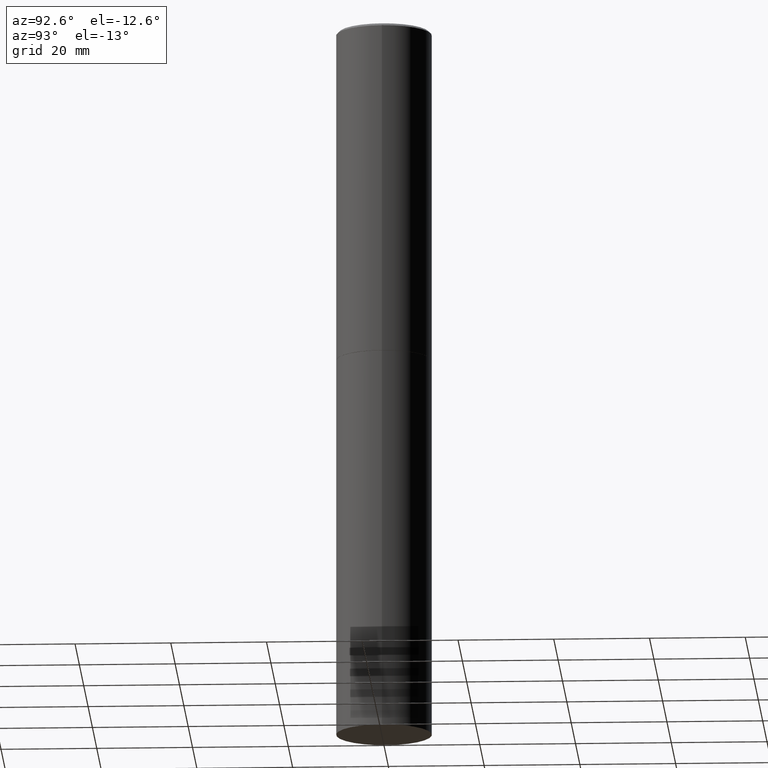
[diagram: clean part render]
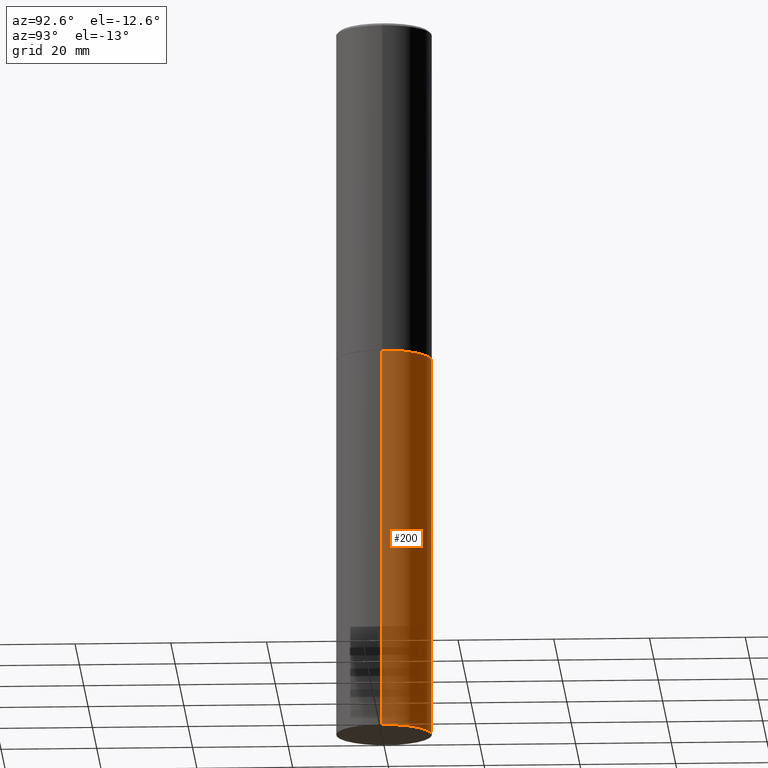
[diagram: same view with one face highlighted and labeled with its STEP entity id]
A machine part, auxiliary view. The second image highlights one B-rep face of the part: STEP entity #200.
In plain terms, the highlighted cylindrical surface (partial cylindrical patch) has radius 10 mm, axis along (-0, 0, 1).
Its self-contained STEP definition (entity closure, byte-faithful):
#8 = ORIENTED_EDGE ( 'NONE', *, *, #154, .F. ) ;
#27 = CARTESIAN_POINT ( 'NONE',  ( 0.3937000000000000499, -1.237136582792290603E-14, -2.755899999999999572 ) ) ;
#64 = CARTESIAN_POINT ( 'NONE',  ( 6.739467482965617111E-29, -9.622173421717822812E-15, -2.755899999999999572 ) ) ;
#66 = EDGE_CURVE ( 'NONE', #168, #98, #285, .T. ) ;
#83 = CARTESIAN_POINT ( 'NONE',  ( -0.3937000000000000499, -1.232315148344049418E-14, -2.755899999999999572 ) ) ;
#84 = AXIS2_PLACEMENT_3D ( 'NONE', #113, #108, #222 ) ;
#98 = VERTEX_POINT ( 'NONE', #83 ) ;
#106 = VERTEX_POINT ( 'NONE', #27 ) ;
#108 = DIRECTION ( 'NONE',  ( -2.445468806185136597E-29, 3.491481338843145583E-15, 1.000000000000000000 ) ) ;
#113 = CARTESIAN_POINT ( 'NONE',  ( 1.444171603492632270E-28, -2.061894304653819197E-14, -5.905499999999999972 ) ) ;
#120 = CARTESIAN_POINT ( 'NONE',  ( 0.3937000000000000499, -2.749192406205083217E-15, 1.919750796630860172E-29 ) ) ;
#133 = DIRECTION ( 'NONE',  ( -2.445468806185136877E-29, 3.491481338843145188E-15, 1.000000000000000000 ) ) ;
#145 = CARTESIAN_POINT ( 'NONE',  ( -0.3937000000000000499, -1.232315148344049418E-14, -5.905499999999999972 ) ) ;
#147 = CARTESIAN_POINT ( 'NONE',  ( 0.000000000000000000, 0.000000000000000000, 0.000000000000000000 ) ) ;
#148 = ORIENTED_EDGE ( 'NONE', *, *, #206, .F. ) ;
#154 = EDGE_CURVE ( 'NONE', #359, #106, #328, .T. ) ;
#168 = VERTEX_POINT ( 'NONE', #145 ) ;
#172 = VECTOR ( 'NONE', #334, 39.37007874015748143 ) ;
#178 = DIRECTION ( 'NONE',  ( 1.000000000000000000, -6.982962677686267499E-15, 0.000000000000000000 ) ) ;
#193 = AXIS2_PLACEMENT_3D ( 'NONE', #64, #331, #178 ) ;
#200 = ADVANCED_FACE ( 'NONE', ( #301 ), #251, .T. ) ;
#206 = EDGE_CURVE ( 'NONE', #106, #98, #244, .T. ) ;
#215 = VECTOR ( 'NONE', #133, 39.37007874015748143 ) ;
#218 = EDGE_LOOP ( 'NONE', ( #221, #237, #148, #8 ) ) ;
#221 = ORIENTED_EDGE ( 'NONE', *, *, #357, .T. ) ;
#222 = DIRECTION ( 'NONE',  ( 1.000000000000000000, -6.982962677686267499E-15, 0.000000000000000000 ) ) ;
#235 = AXIS2_PLACEMENT_3D ( 'NONE', #147, #304, #253 ) ;
#237 = ORIENTED_EDGE ( 'NONE', *, *, #66, .T. ) ;
#244 = CIRCLE ( 'NONE', #193, 0.3937000000000000499 ) ;
#251 = CYLINDRICAL_SURFACE ( 'NONE', #235, 0.3937000000000000499 ) ;
#253 = DIRECTION ( 'NONE',  ( 1.000000000000000000, -6.982962677686265922E-15, 4.876176775795935793E-29 ) ) ;
#264 = CARTESIAN_POINT ( 'NONE',  ( -0.3937000000000000499, 2.797406750687514786E-15, -1.936584745033356735E-29 ) ) ;
#285 = LINE ( 'NONE', #264, #215 ) ;
#301 = FACE_OUTER_BOUND ( 'NONE', #218, .T. ) ;
#304 = DIRECTION ( 'NONE',  ( -2.445468806185136597E-29, 3.491481338843145583E-15, 1.000000000000000000 ) ) ;
#326 = CARTESIAN_POINT ( 'NONE',  ( 0.3937000000000000499, -2.336813545274327834E-14, -5.905499999999999972 ) ) ;
#328 = LINE ( 'NONE', #120, #172 ) ;
#331 = DIRECTION ( 'NONE',  ( -2.445468806185136597E-29, 3.491481338843145583E-15, 1.000000000000000000 ) ) ;
#334 = DIRECTION ( 'NONE',  ( -2.445468806185136877E-29, 3.491481338843145188E-15, 1.000000000000000000 ) ) ;
#352 = CIRCLE ( 'NONE', #84, 0.3937000000000000499 ) ;
#357 = EDGE_CURVE ( 'NONE', #359, #168, #352, .T. ) ;
#359 = VERTEX_POINT ( 'NONE', #326 ) ;